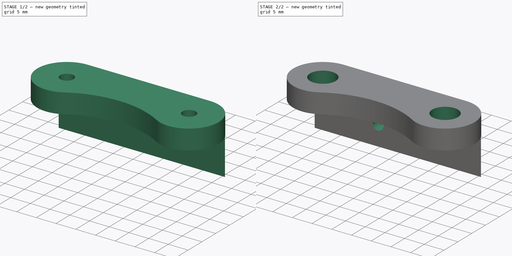
[diagram: build sequence overview — one tinted view per stage of 2, left to right]
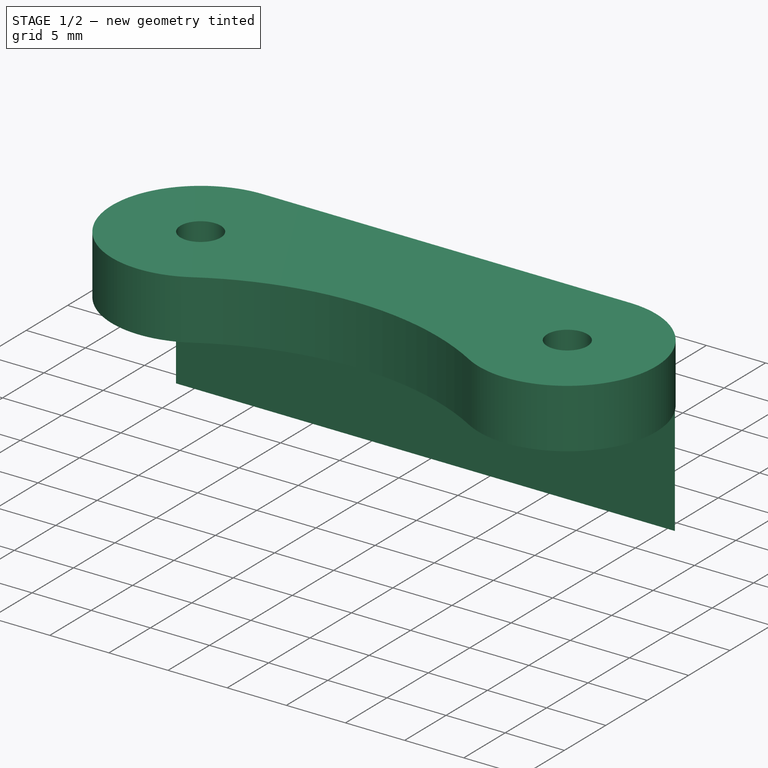
[diagram: stage 1 of 2 — iso view after this stage's code; geometry added in this stage tinted green]
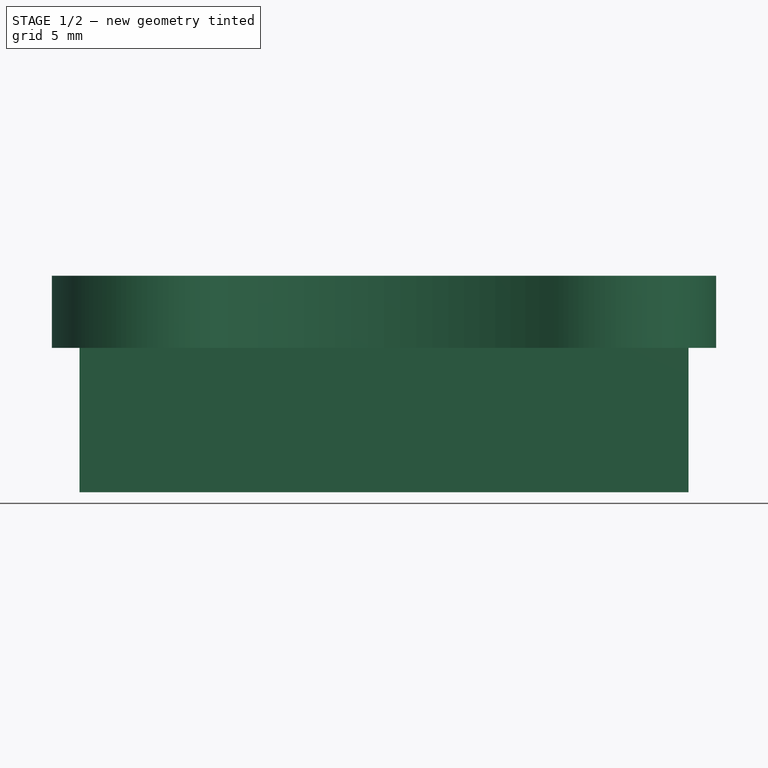
[diagram: stage 1 of 2 — front view after this stage's code; geometry added in this stage tinted green]
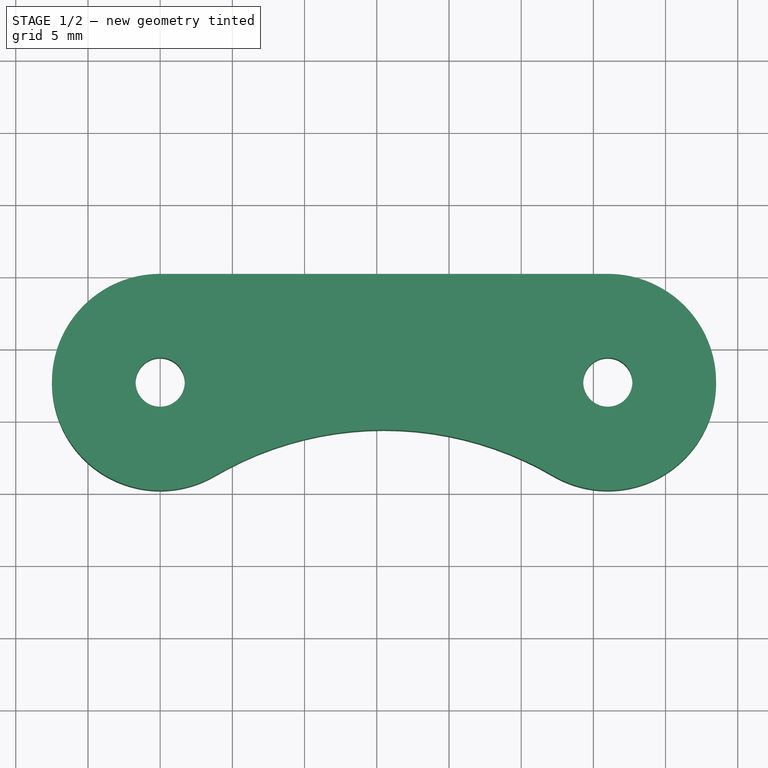
[diagram: stage 1 of 2 — top view after this stage's code; geometry added in this stage tinted green]
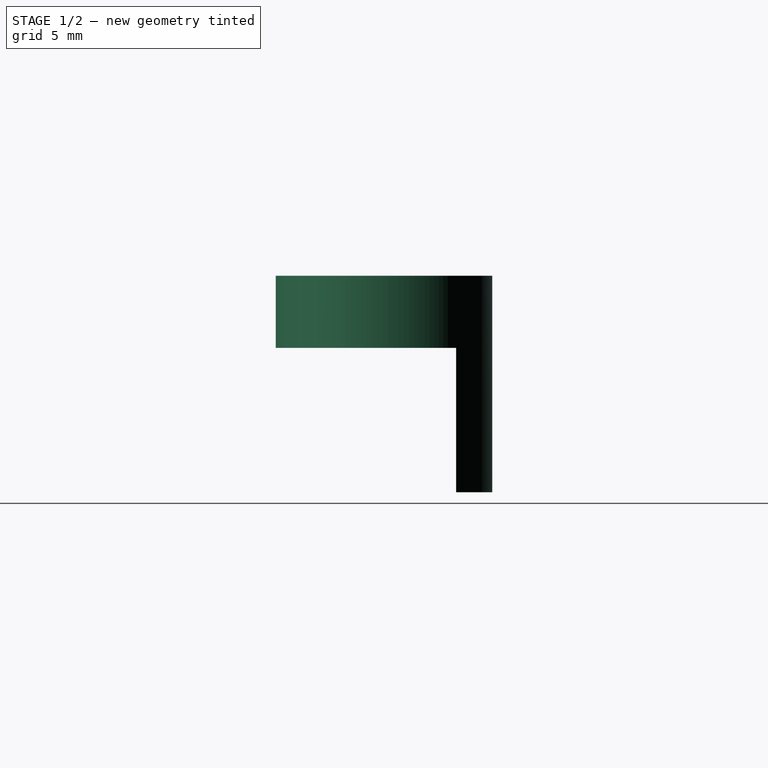
[diagram: stage 1 of 2 — right view after this stage's code; geometry added in this stage tinted green]
FCSTD DOCUMENT  (FreeCAD 0.19R21938 (Git))
Label: y-carriage-endstop
License: All rights reserved
LicenseURL: http://en.wikipedia.org/wiki/All_rights_reserved
objects: Sketcher::SketchObject×4, PartDesign::Pocket×3, PartDesign::Pad×1, PartDesign::Body×1
note: 13 computed .brp shape members not serialized (recipe doc carries the construction recipe); baked Part::Feature solids carry a one-line shape summary decoded from their .brp

FEATURE [Sketcher::SketchObject] Sketch021
  MapMode = 5
  Support = -> [XY_Plane003]
  sketch-geometry (7):
    g0: GeomPoint X=185.5 Y=-183 Z=0
    g1: Circle CenterX=170 CenterY=-167.5 CenterZ=0 NormalX=0 NormalY=0 NormalZ=1 AngleXU=0 Radius=1.7
    g2: Circle CenterX=201 CenterY=-167.5 CenterZ=0 NormalX=0 NormalY=0 NormalZ=1 AngleXU=0 Radius=1.7
    g3: ArcOfCircle CenterX=170 CenterY=-167.5 CenterZ=0 NormalX=0 NormalY=0 NormalZ=1 AngleXU=0 Radius=7.5 StartAngle=1.5708 EndAngle=5.2347
    g4: ArcOfCircle CenterX=201 CenterY=-167.5 CenterZ=0 NormalX=0 NormalY=0 NormalZ=1 AngleXU=0 Radius=7.5 StartAngle=4.19007 EndAngle=7.85398
    g5: ArcOfCircle CenterX=185.5 CenterY=-194 CenterZ=0 NormalX=0 NormalY=0 NormalZ=1 AngleXU=0 Radius=23.2004 StartAngle=1.03931 EndAngle=2.10228
    g6: LineSegment StartX=170 StartY=-160 StartZ=0 EndX=201 EndY=-160 EndZ=0
  constraints (23):
    c: DistanceX(g-1,g0) = 185.5
    c: DistanceY(g0,g-1) = 183
    c: DistanceX(g1,g0) = 15.5
    c: DistanceX(g1,g2) = 31
    c: DistanceY(g0,g2) = 15.5
    c: DistanceY(g1,g2) = 0
    c: Diameter(g1) = 3.4
    c: Equal(g1,g2)
    c: Coincident(g3,g1)
    c: Coincident(g4,g2)
    c: Diameter(g3) = 15
    c: DistanceX(g2,g4) = 0
    c: DistanceX(g3,g1) = 0
    c: Equal(g3,g4)
    c: DistanceY(g3,g4) = 0
    c: Coincident(g5,g3)
    c: Coincident(g5,g4)
    c: Coincident(g6,g3)
    c: Coincident(g6,g4)
    c: Horizontal(g6)
    c: Tangent(g6,g4)
    c: DistanceY(g0,g3) = 9
    c: DistanceY(g5,g0) = 11
FEATURE [PartDesign::Pad] Pad003
  Length = 15
  Length2 = 100
  Profile = -> Sketch021
  Reversed = true
  Type = 0
FEATURE [Sketcher::SketchObject] Sketch022
  MapMode = 5
  Placement = pos=(0,0,0) rot=(0.57735,0.57735,0.57735;2.0944rad)
  Support = -> [YZ_Plane003]
  sketch-geometry (4):
    g0: LineSegment StartX=-175.5 StartY=-5 StartZ=0 EndX=-162.5 EndY=-5 EndZ=0
    g1: LineSegment StartX=-162.5 StartY=-5 StartZ=0 EndX=-162.5 EndY=-16 EndZ=0
    g2: LineSegment StartX=-162.5 StartY=-16 StartZ=0 EndX=-175.5 EndY=-16 EndZ=0
    g3: LineSegment StartX=-175.5 StartY=-16 StartZ=0 EndX=-175.5 EndY=-5 EndZ=0
  constraints (12):
    c: Coincident(g0,g1)
    c: Coincident(g1,g2)
    c: Coincident(g2,g3)
    c: Coincident(g3,g0)
    c: Horizontal(g0)
    c: Horizontal(g2)
    c: Vertical(g1)
    c: Vertical(g3)
    c: DistanceX(g0,g0) = 13
    c: DistanceY(g1,g1) = 11
    c: DistanceX(g0,g-1) = 162.5
    c: DistanceY(g0,g-1) = 5
FEATURE [PartDesign::Pocket] Pocket018
  BaseFeature = -> Pad003
  Length = 5
  Length2 = 100
  Profile = -> Sketch022
  Reversed = true
  Type = 1
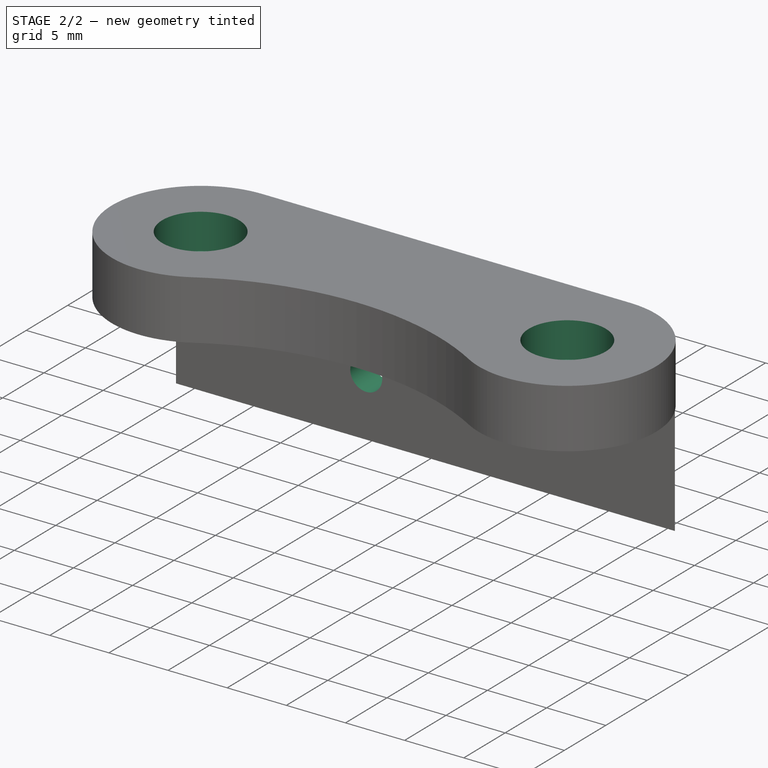
[diagram: stage 2 of 2 — iso view after this stage's code; geometry added in this stage tinted green]
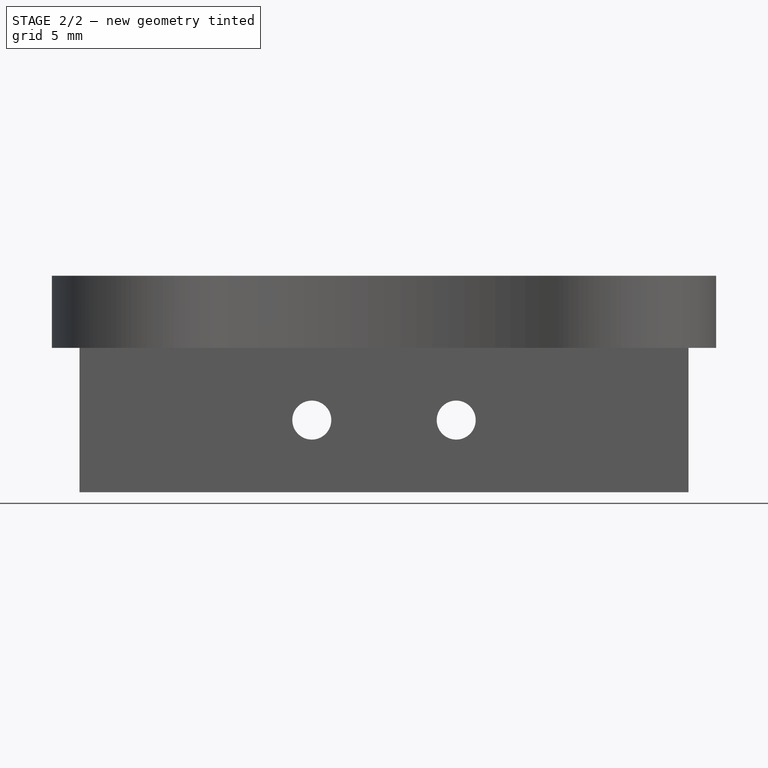
[diagram: stage 2 of 2 — front view after this stage's code; geometry added in this stage tinted green]
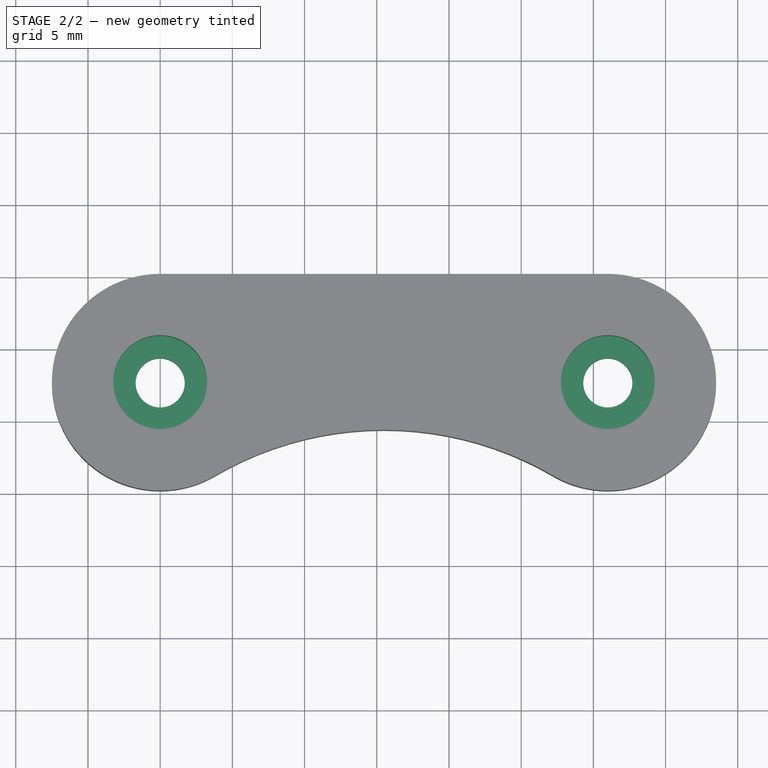
[diagram: stage 2 of 2 — top view after this stage's code; geometry added in this stage tinted green]
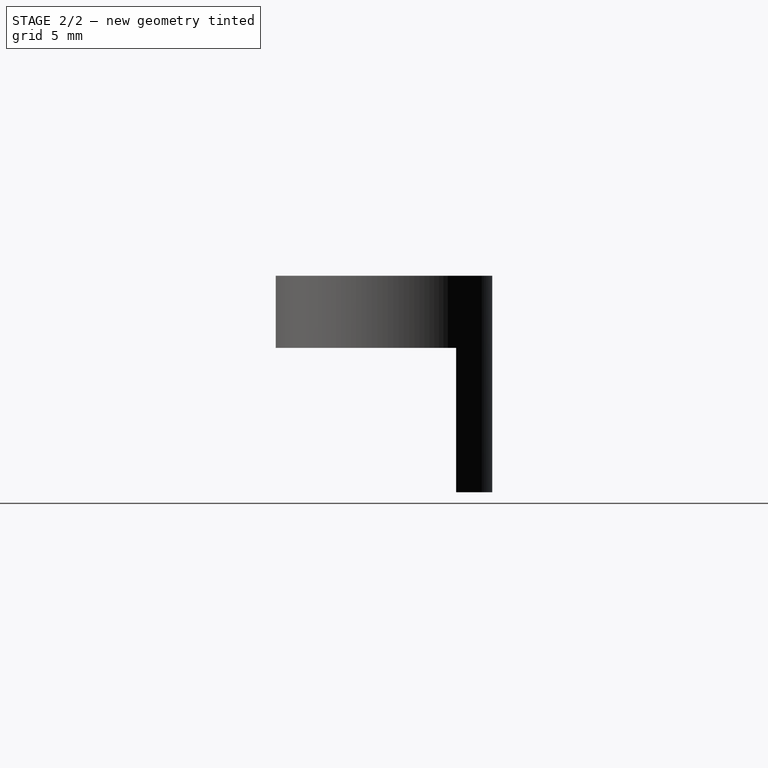
[diagram: stage 2 of 2 — right view after this stage's code; geometry added in this stage tinted green]
FEATURE [Sketcher::SketchObject] Sketch023
  MapMode = 5
  Placement = pos=(0,0,0) rot=(1,0,0;1.5708rad)
  Support = -> [XZ_Plane003]
  sketch-geometry (3):
    g0: GeomPoint X=185.5 Y=0 Z=0
    g1: Circle CenterX=180.5 CenterY=-10 CenterZ=0 NormalX=0 NormalY=0 NormalZ=1 AngleXU=0 Radius=1.35
    g2: Circle CenterX=190.5 CenterY=-10 CenterZ=0 NormalX=0 NormalY=0 NormalZ=1 AngleXU=0 Radius=1.35
  constraints (8):
    c: DistanceX(g-1,g0) = 185.5
    c: PointOnObject(g0,g-1)
    c: Equal(g1,g2)
    c: DistanceY(g2,g1) = 0
    c: DistanceX(g1,g0) = 5
    c: DistanceX(g1,g2) = 10
    c: Diameter(g1) = 2.7
    c: DistanceY(g1,g0) = 10
FEATURE [PartDesign::Pocket] Pocket019
  BaseFeature = -> Pocket018
  Length = 5
  Length2 = 100
  Profile = -> Sketch023
  Reversed = true
  Type = 1
FEATURE [Sketcher::SketchObject] Sketch024
  MapMode = 5
  Support = -> [XY_Plane003]
  sketch-geometry (3):
    g0: GeomPoint X=185.5 Y=-183 Z=0
    g1: Circle CenterX=170 CenterY=-167.5 CenterZ=0 NormalX=0 NormalY=0 NormalZ=1 AngleXU=0 Radius=3.25
    g2: Circle CenterX=201 CenterY=-167.5 CenterZ=0 NormalX=0 NormalY=0 NormalZ=1 AngleXU=0 Radius=3.25
  constraints (8):
    c: DistanceX(g-1,g0) = 185.5
    c: DistanceY(g0,g-1) = 183
    c: DistanceY(g2,g1) = 0
    c: Equal(g1,g2)
    c: Diameter(g1) = 6.5
    c: DistanceX(g1,g2) = 31
    c: DistanceY(g0,g1) = 15.5
    c: DistanceX(g1,g0) = 15.5
FEATURE [PartDesign::Pocket] Pocket020
  BaseFeature = -> Pocket019
  Length = 3
  Length2 = 100
  Profile = -> Sketch024
  Type = 0
FEATURE [PartDesign::Body] Body003  label="y-carriage-endstop"
  Group = -> [Sketch021,Pad003,Sketch022,Pocket018,Sketch023,Pocket019,Sketch024,Pocket020]
  Origin = -> Origin003
  Placement = pos=(1,1,-22) rot=(0,0,1;0rad)
  Tip = -> Pocket020
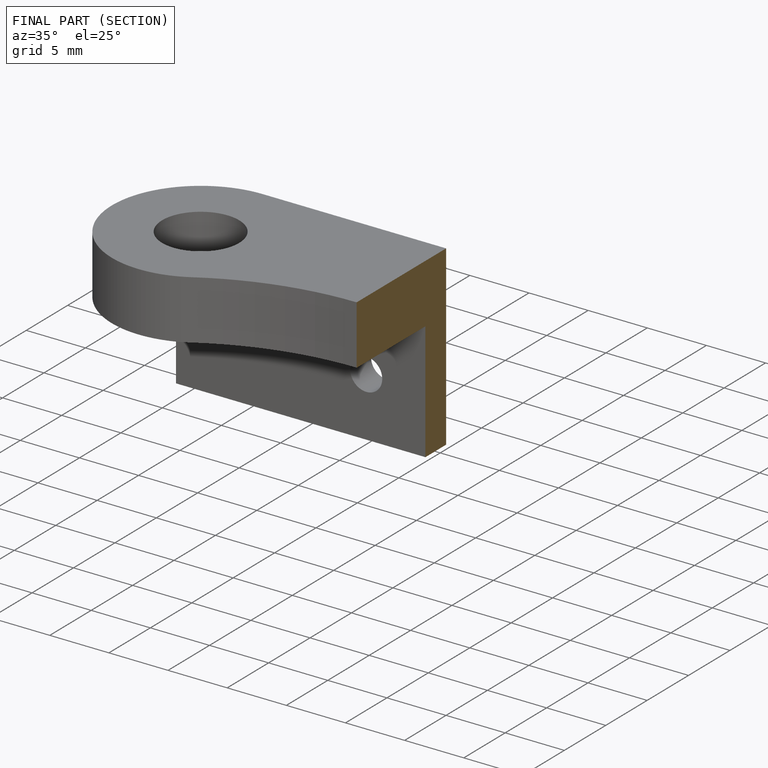
[diagram: finished part — half-section view (interior)]
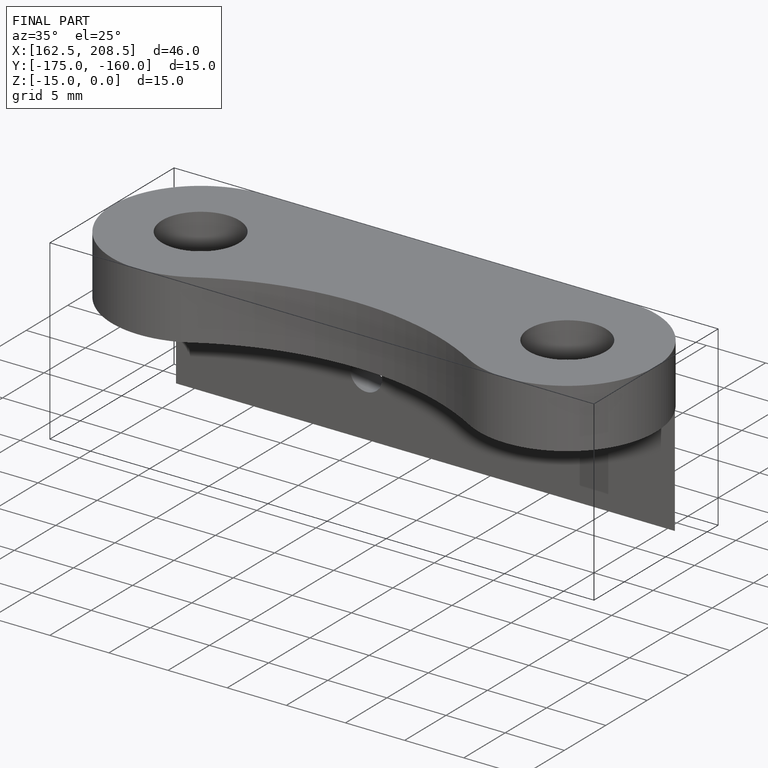
[diagram: finished part — iso view with bounding-box wireframe]
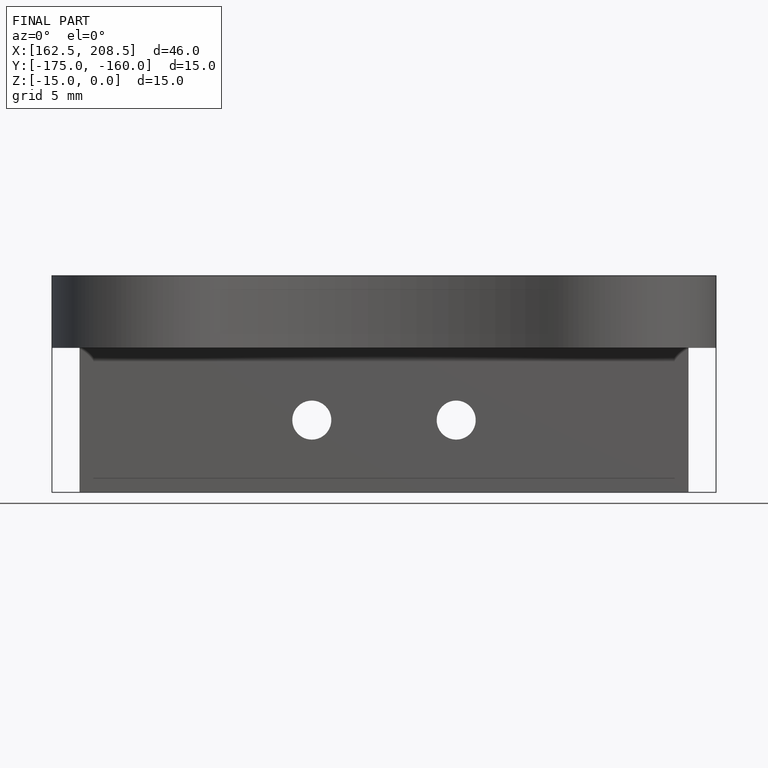
[diagram: finished part — front view with bounding-box wireframe]
